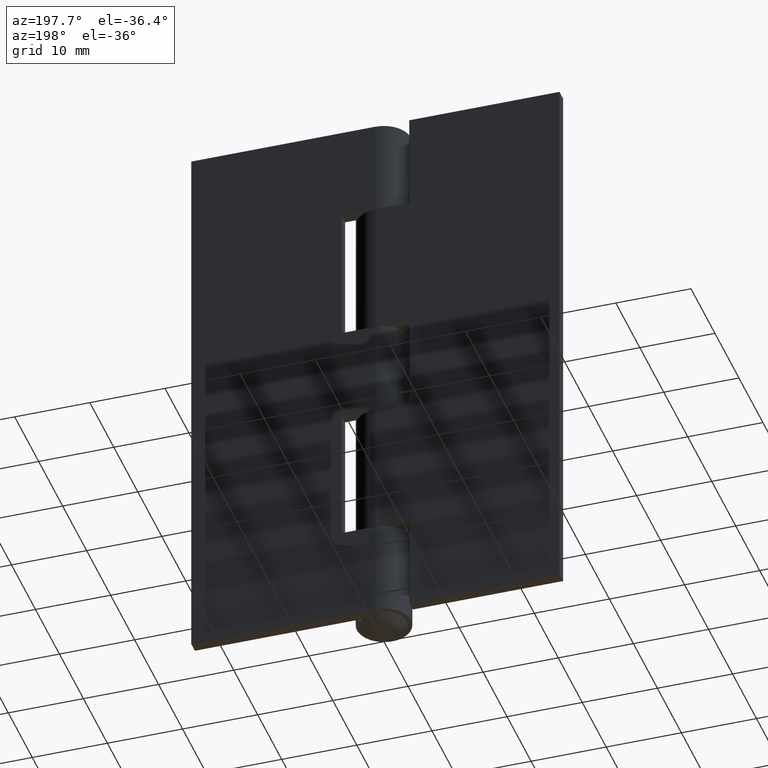
[diagram: clean part render]
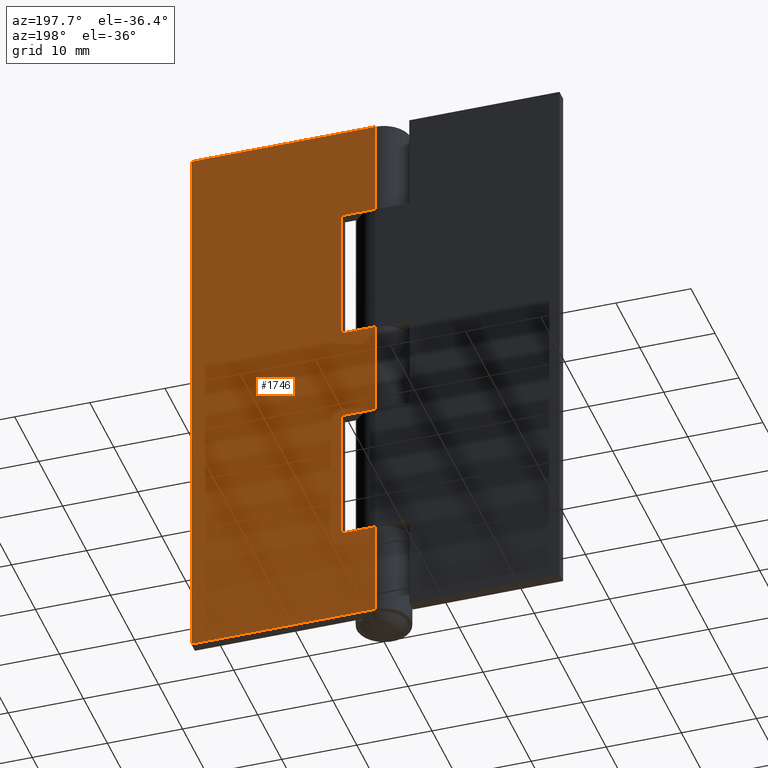
[diagram: same view with one face highlighted and labeled with its STEP entity id]
A machine part, auxiliary view. The second image highlights one B-rep face of the part: STEP entity #1746.
In plain terms, the highlighted face is a freeform B-spline surface patch.
Its self-contained STEP definition (entity closure, byte-faithful):
#1223=CARTESIAN_POINT('',(0.003794732692927,3.599998000000000,63.000008000000093));
#1224=VERTEX_POINT('',#1223);
#1258=CARTESIAN_POINT('',(4.500000000000000,3.599998000000000,63.000007999999987));
#1259=VERTEX_POINT('',#1258);
#1260=CARTESIAN_POINT('',(4.500000000000000,3.599998000000000,63.000007999999987));
#1261=CARTESIAN_POINT('',(0.003794732692927,3.599998000000000,63.000008000000093));
#1262=QUASI_UNIFORM_CURVE('',1,(#1260,#1261),.UNSPECIFIED.,.F.,.U.);
#1263=EDGE_CURVE('',#1259,#1224,#1262,.T.);
#1280=CARTESIAN_POINT('',(4.500000000000000,3.599998000000000,44.500000000000000));
#1281=VERTEX_POINT('',#1280);
#1282=CARTESIAN_POINT('',(4.500000000000000,3.599998000000000,44.500000000000000));
#1283=CARTESIAN_POINT('',(4.500000000000000,3.599998000000000,63.000007999999987));
#1284=QUASI_UNIFORM_CURVE('',1,(#1282,#1283),.UNSPECIFIED.,.F.,.U.);
#1285=EDGE_CURVE('',#1281,#1259,#1284,.T.);
#1302=CARTESIAN_POINT('',(0.003794732692927,3.599998000000000,44.500000000000000));
#1303=VERTEX_POINT('',#1302);
#1304=CARTESIAN_POINT('',(0.003794732692927,3.599998000000000,44.500000000000000));
#1305=CARTESIAN_POINT('',(4.500000000000000,3.599998000000000,44.500000000000000));
#1306=QUASI_UNIFORM_CURVE('',1,(#1304,#1305),.UNSPECIFIED.,.F.,.U.);
#1307=EDGE_CURVE('',#1303,#1281,#1306,.T.);
#1363=CARTESIAN_POINT('',(0.003794732692927,3.599998000000000,31.500000000000000));
#1364=VERTEX_POINT('',#1363);
#1398=CARTESIAN_POINT('',(4.500000000000000,3.599998000000000,31.500000000000000));
#1399=VERTEX_POINT('',#1398);
#1400=CARTESIAN_POINT('',(4.500000000000000,3.599998000000000,31.500000000000000));
#1401=CARTESIAN_POINT('',(0.003794732692927,3.599998000000000,31.500000000000000));
#1402=QUASI_UNIFORM_CURVE('',1,(#1400,#1401),.UNSPECIFIED.,.F.,.U.);
#1403=EDGE_CURVE('',#1399,#1364,#1402,.T.);
#1420=CARTESIAN_POINT('',(4.500000000000000,3.599998000000000,13.0));
#1421=VERTEX_POINT('',#1420);
#1422=CARTESIAN_POINT('',(4.500000000000000,3.599998000000000,13.0));
#1423=CARTESIAN_POINT('',(4.500000000000000,3.599998000000000,31.500000000000000));
#1424=QUASI_UNIFORM_CURVE('',1,(#1422,#1423),.UNSPECIFIED.,.F.,.U.);
#1425=EDGE_CURVE('',#1421,#1399,#1424,.T.);
#1442=CARTESIAN_POINT('',(0.003794732692927,3.599998000000000,13.0));
#1443=VERTEX_POINT('',#1442);
#1444=CARTESIAN_POINT('',(0.003794732692927,3.599998000000000,13.0));
#1445=CARTESIAN_POINT('',(4.500000000000000,3.599998000000000,13.0));
#1446=QUASI_UNIFORM_CURVE('',1,(#1444,#1445),.UNSPECIFIED.,.F.,.U.);
#1447=EDGE_CURVE('',#1443,#1421,#1446,.T.);
#1499=CARTESIAN_POINT('',(0.003794732692927,3.599998000000000,0.0));
#1500=VERTEX_POINT('',#1499);
#1501=CARTESIAN_POINT('',(24.500000000000000,3.599998000000000,0.0));
#1502=VERTEX_POINT('',#1501);
#1503=CARTESIAN_POINT('',(0.003794732692927,3.599998000000000,0.0));
#1504=CARTESIAN_POINT('',(24.500000000000000,3.599998000000000,0.0));
#1505=QUASI_UNIFORM_CURVE('',1,(#1503,#1504),.UNSPECIFIED.,.F.,.U.);
#1506=EDGE_CURVE('',#1500,#1502,#1505,.T.);
#1558=CARTESIAN_POINT('',(0.003794732692927,3.599998000000000,76.000008000000093));
#1559=VERTEX_POINT('',#1558);
#1560=CARTESIAN_POINT('',(24.500000000000000,3.599998000000000,76.000008000000093));
#1561=VERTEX_POINT('',#1560);
#1562=CARTESIAN_POINT('',(0.003794732692927,3.599998000000000,76.000008000000093));
#1563=CARTESIAN_POINT('',(24.500000000000000,3.599998000000000,76.000008000000093));
#1564=QUASI_UNIFORM_CURVE('',1,(#1562,#1563),.UNSPECIFIED.,.F.,.U.);
#1565=EDGE_CURVE('',#1559,#1561,#1564,.T.);
#1616=CARTESIAN_POINT('',(24.500000000000000,3.599998000000000,76.000008000000093));
#1617=CARTESIAN_POINT('',(24.500000000000000,3.599998000000000,0.0));
#1618=QUASI_UNIFORM_CURVE('',1,(#1616,#1617),.UNSPECIFIED.,.F.,.U.);
#1619=EDGE_CURVE('',#1561,#1502,#1618,.T.);
#1650=CARTESIAN_POINT('',(0.003794732692927,3.599998000000000,13.0));
#1651=CARTESIAN_POINT('',(0.003794732692927,3.599998000000000,0.0));
#1652=QUASI_UNIFORM_CURVE('',1,(#1650,#1651),.UNSPECIFIED.,.F.,.U.);
#1653=EDGE_CURVE('',#1443,#1500,#1652,.T.);
#1685=CARTESIAN_POINT('',(0.003794732692927,3.599998000000000,76.000008000000093));
#1686=CARTESIAN_POINT('',(0.003794732692927,3.599998000000000,63.000008000000093));
#1687=QUASI_UNIFORM_CURVE('',1,(#1685,#1686),.UNSPECIFIED.,.F.,.U.);
#1688=EDGE_CURVE('',#1559,#1224,#1687,.T.);
#1717=CARTESIAN_POINT('',(0.003794732692927,3.599998000000000,44.500000000000000));
#1718=CARTESIAN_POINT('',(0.003794732692927,3.599998000000000,31.500000000000000));
#1719=QUASI_UNIFORM_CURVE('',1,(#1717,#1718),.UNSPECIFIED.,.F.,.U.);
#1720=EDGE_CURVE('',#1303,#1364,#1719,.T.);
#1727=CARTESIAN_POINT('',(-1.219790672930663,3.599998000000000,-3.796200252297245));
#1728=CARTESIAN_POINT('',(-1.219790672930663,3.599998000000000,79.796210290776401));
#1729=CARTESIAN_POINT('',(25.723586062663010,3.599998000000000,-3.796200252297245));
#1730=CARTESIAN_POINT('',(25.723586062663010,3.599998000000000,79.796210290776401));
#1731=B_SPLINE_SURFACE_WITH_KNOTS('',1,1,((#1727,#1729),(#1728,#1730)),.UNSPECIFIED.,.F.,.F.,.U.,(2,2),(2,2),(0.0,83.592410543073640),(0.0,26.943376735593670),.UNSPECIFIED.);
#1732=ORIENTED_EDGE('',*,*,#1720,.F.);
#1733=ORIENTED_EDGE('',*,*,#1307,.T.);
#1734=ORIENTED_EDGE('',*,*,#1285,.T.);
#1735=ORIENTED_EDGE('',*,*,#1263,.T.);
#1736=ORIENTED_EDGE('',*,*,#1688,.F.);
#1737=ORIENTED_EDGE('',*,*,#1565,.T.);
#1738=ORIENTED_EDGE('',*,*,#1619,.T.);
#1739=ORIENTED_EDGE('',*,*,#1506,.F.);
#1740=ORIENTED_EDGE('',*,*,#1653,.F.);
#1741=ORIENTED_EDGE('',*,*,#1447,.T.);
#1742=ORIENTED_EDGE('',*,*,#1425,.T.);
#1743=ORIENTED_EDGE('',*,*,#1403,.T.);
#1744=EDGE_LOOP('',(#1732,#1733,#1734,#1735,#1736,#1737,#1738,#1739,#1740,#1741,#1742,#1743));
#1745=FACE_OUTER_BOUND('',#1744,.T.);
#1746=ADVANCED_FACE('',(#1745),#1731,.T.);